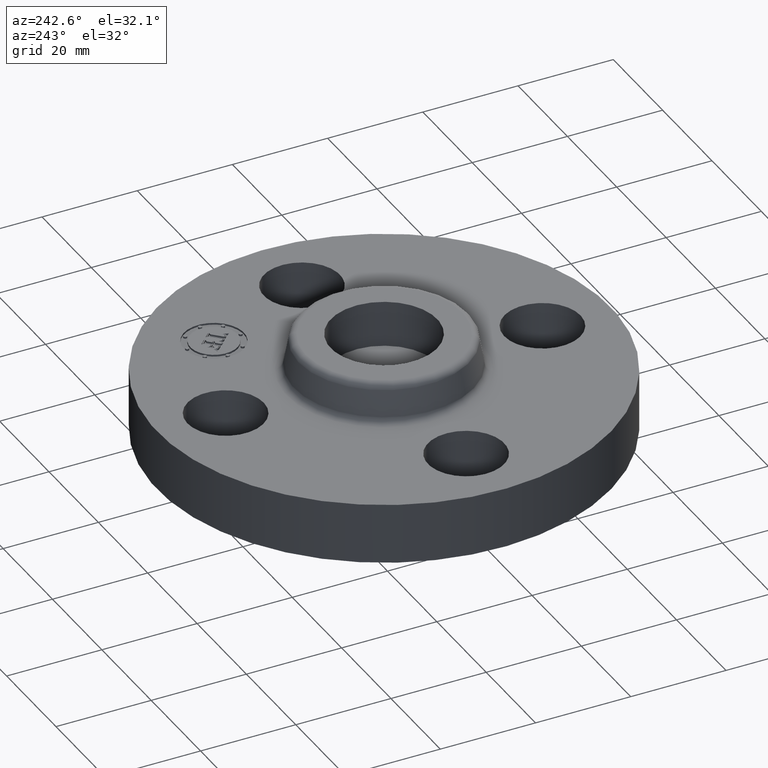
[diagram: clean part render]
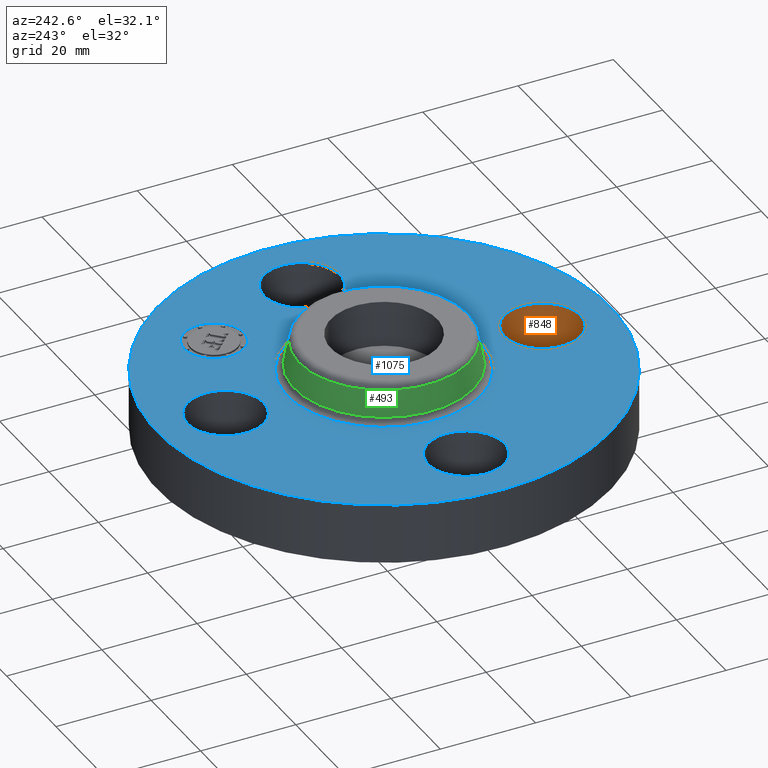
[diagram: same view with three faces highlighted in distinct colors, each labeled with its STEP entity id]
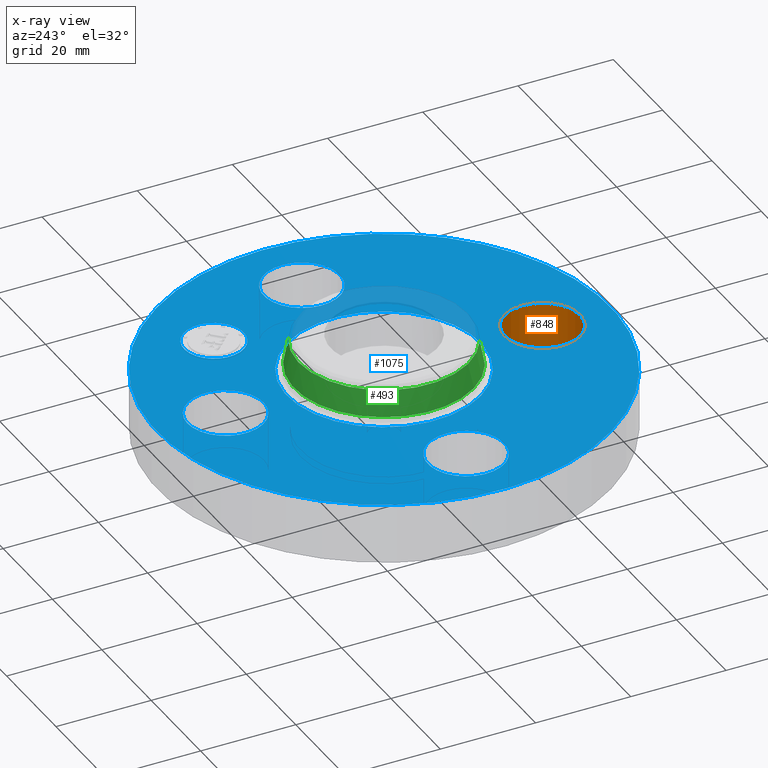
[diagram: x-ray of the same camera — body ghosted, the three highlighted faces saturated]
A machine part, auxiliary view with three faces highlighted in distinct colors.
The next image is the same camera in x-ray (body ghosted, the three faces saturated) — at least one of them is partly hidden behind the body in this view.
Their STEP definitions:

[orange] entity #848 — the highlighted cylindrical surface (partial cylindrical patch) has radius 8.001 mm, axis along (0, 0, -1).
#548=AXIS2_PLACEMENT_3D('Circle Axis2P3D',#546,#547,$) ;
#809=AXIS2_PLACEMENT_3D('Cylinder Axis2P3D',#806,#807,#808) ;
#546=CARTESIAN_POINT('Axis2P3D Location',(-1.28118338336E-011,-1.30999999998,0.)) ;
#550=CARTESIAN_POINT('Vertex',(0.151019044675,-1.03356149299,0.)) ;
#552=CARTESIAN_POINT('Vertex',(-0.151019044675,-1.58643850699,0.)) ;
#806=CARTESIAN_POINT('Axis2P3D Location',(-1.99526869207E-016,-1.31000000001,0.496062992128)) ;
#811=CARTESIAN_POINT('Line Origine',(0.151019044661,-1.03356149301,0.250000000001)) ;
#815=CARTESIAN_POINT('Vertex',(0.151019044659,-1.03356149301,0.499999999987)) ;
#818=CARTESIAN_POINT('Line Origine',(-0.151019044661,-1.58643850701,0.250000000001)) ;
#822=CARTESIAN_POINT('Vertex',(-0.151019044661,-1.58643850701,0.499999999987)) ;
#826=CARTESIAN_POINT('Control Point',(0.151019044659,-1.03356149301,0.499999999987)) ;
#827=CARTESIAN_POINT('Control Point',(0.194441903797,-1.05728350908,0.499999999988)) ;
#828=CARTESIAN_POINT('Control Point',(0.233206955973,-1.08953158359,0.499999999989)) ;
#829=CARTESIAN_POINT('Control Point',(0.265074533341,-1.12909312141,0.49999999999)) ;
#830=CARTESIAN_POINT('Control Point',(0.311580534084,-1.21857978084,0.499999999991)) ;
#831=CARTESIAN_POINT('Control Point',(0.320796932275,-1.31900750771,0.499999999992)) ;
#832=CARTESIAN_POINT('Control Point',(0.315356480668,-1.36951551943,0.499999999993)) ;
#833=CARTESIAN_POINT('Control Point',(0.284964565451,-1.46567685163,0.499999999995)) ;
#834=CARTESIAN_POINT('Control Point',(0.220468416417,-1.54320695598,0.499999999996)) ;
#835=CARTESIAN_POINT('Control Point',(0.180906878602,-1.57507453335,0.499999999997)) ;
#836=CARTESIAN_POINT('Control Point',(0.0914202191719,-1.62158053409,0.499999999998)) ;
#837=CARTESIAN_POINT('Control Point',(-0.0090075077032,-1.63079693228,0.5)) ;
#838=CARTESIAN_POINT('Control Point',(-0.0595155194239,-1.62535648068,0.500000000001)) ;
#839=CARTESIAN_POINT('Control Point',(-0.107596185523,-1.61016052307,0.500000000001)) ;
#840=CARTESIAN_POINT('Control Point',(-0.151019044661,-1.58643850701,0.500000000002)) ;
#547=DIRECTION('Axis2P3D Direction',(0.,0.,-0.0393700787402)) ;
#807=DIRECTION('Axis2P3D Direction',(0.,0.,-0.0393700787402)) ;
#808=DIRECTION('Axis2P3D XDirection',(0.0188750212047,0.0345504945627,0.)) ;
#812=DIRECTION('Vector Direction',(0.,0.,-0.0393700787402)) ;
#819=DIRECTION('Vector Direction',(0.,0.,-0.0393700787402)) ;
#813=VECTOR('Line Direction',#812,0.0393700787402) ;
#820=VECTOR('Line Direction',#819,0.0393700787402) ;
#843=ORIENTED_EDGE('',*,*,#817,.F.) ;
#844=ORIENTED_EDGE('',*,*,#554,.T.) ;
#845=ORIENTED_EDGE('',*,*,#824,.T.) ;
#846=ORIENTED_EDGE('',*,*,#841,.F.) ;
#848=ADVANCED_FACE('PartBody',(#847),#810,.F.) ;
#825=B_SPLINE_CURVE_WITH_KNOTS('',5,(#826,#827,#828,#829,#830,#831,#832,#833,#834,#835,#836,#837,#838,#839,#840),.UNSPECIFIED.,.F.,.U.,(6,3,3,3,6),(-12.5679414107,-6.28397070537,0.,6.28397070537,12.5679414107),.UNSPECIFIED.) ;
#549=CIRCLE('generated circle',#548,0.315000000013) ;
#810=CYLINDRICAL_SURFACE('generated cylinder',#809,0.315000000001) ;
#554=EDGE_CURVE('',#551,#553,#549,.T.) ;
#817=EDGE_CURVE('',#551,#816,#814,.F.) ;
#824=EDGE_CURVE('',#553,#823,#821,.F.) ;
#841=EDGE_CURVE('',#816,#823,#825,.T.) ;
#842=EDGE_LOOP('',(#843,#844,#845,#846)) ;
#847=FACE_OUTER_BOUND('',#842,.T.) ;
#814=LINE('Line',#811,#813) ;
#821=LINE('Line',#818,#820) ;
#551=VERTEX_POINT('',#550) ;
#553=VERTEX_POINT('',#552) ;
#816=VERTEX_POINT('',#815) ;
#823=VERTEX_POINT('',#822) ;

[blue] entity #1075 — the highlighted planar face has unit normal (0, 0, -1).
#615=AXIS2_PLACEMENT_3D('Circle Axis2P3D',#613,#614,$) ;
#653=AXIS2_PLACEMENT_3D('Circle Axis2P3D',#651,#652,$) ;
#684=AXIS2_PLACEMENT_3D('Circle Axis2P3D',#682,#683,$) ;
#715=AXIS2_PLACEMENT_3D('Circle Axis2P3D',#713,#714,$) ;
#753=AXIS2_PLACEMENT_3D('Circle Axis2P3D',#751,#752,$) ;
#863=AXIS2_PLACEMENT_3D('Circle Axis2P3D',#861,#862,$) ;
#937=AXIS2_PLACEMENT_3D('Circle Axis2P3D',#935,#936,$) ;
#1011=AXIS2_PLACEMENT_3D('Circle Axis2P3D',#1009,#1010,$) ;
#1031=AXIS2_PLACEMENT_3D('Plane Axis2P3D',#1028,#1029,#1030) ;
#1059=AXIS2_PLACEMENT_3D('Circle Axis2P3D',#1057,#1058,$) ;
#1068=AXIS2_PLACEMENT_3D('Circle Axis2P3D',#1066,#1067,$) ;
#613=CARTESIAN_POINT('Axis2P3D Location',(0.,0.,0.500000000002)) ;
#617=CARTESIAN_POINT('Vertex',(0.383706301512,0.702369673661,0.500000000002)) ;
#619=CARTESIAN_POINT('Vertex',(-0.383706301512,-0.702369673661,0.500000000002)) ;
#651=CARTESIAN_POINT('Axis2P3D Location',(0.,0.,0.500000000002)) ;
#679=CARTESIAN_POINT('Vertex',(-0.898922884888,-1.64546730355,0.499999999997)) ;
#682=CARTESIAN_POINT('Axis2P3D Location',(0.,0.,0.500000000002)) ;
#686=CARTESIAN_POINT('Vertex',(0.898922884888,1.64546730355,0.499999999997)) ;
#713=CARTESIAN_POINT('Axis2P3D Location',(0.,0.,0.499999999997)) ;
#741=CARTESIAN_POINT('Vertex',(1.58643850697,-0.151019044665,0.500000000002)) ;
#748=CARTESIAN_POINT('Vertex',(1.03356149301,0.151019044661,0.499999999987)) ;
#751=CARTESIAN_POINT('Axis2P3D Location',(1.31000000001,0.,0.499999999987)) ;
#776=CARTESIAN_POINT('Control Point',(1.03356149301,0.151019044661,0.500000000002)) ;
#777=CARTESIAN_POINT('Control Point',(1.05728350908,0.194441903798,0.500000000001)) ;
#778=CARTESIAN_POINT('Control Point',(1.08953158359,0.233206955974,0.500000000001)) ;
#779=CARTESIAN_POINT('Control Point',(1.12909312141,0.265074533342,0.5)) ;
#780=CARTESIAN_POINT('Control Point',(1.21857978084,0.311580534084,0.499999999998)) ;
#781=CARTESIAN_POINT('Control Point',(1.31900750771,0.320796932274,0.499999999997)) ;
#782=CARTESIAN_POINT('Control Point',(1.36951551943,0.315356480668,0.499999999996)) ;
#783=CARTESIAN_POINT('Control Point',(1.46567685163,0.28496456545,0.499999999995)) ;
#784=CARTESIAN_POINT('Control Point',(1.54320695598,0.220468416416,0.499999999993)) ;
#785=CARTESIAN_POINT('Control Point',(1.57507453335,0.180906878601,0.499999999992)) ;
#786=CARTESIAN_POINT('Control Point',(1.62158053409,0.0914202191715,0.499999999991)) ;
#787=CARTESIAN_POINT('Control Point',(1.63079693228,-0.00900750770346,0.49999999999)) ;
#788=CARTESIAN_POINT('Control Point',(1.62535648068,-0.059515519424,0.499999999989)) ;
#789=CARTESIAN_POINT('Control Point',(1.61016052307,-0.107596185523,0.499999999988)) ;
#790=CARTESIAN_POINT('Control Point',(1.58643850701,-0.151019044661,0.499999999987)) ;
#815=CARTESIAN_POINT('Vertex',(0.151019044659,-1.03356149301,0.499999999987)) ;
#822=CARTESIAN_POINT('Vertex',(-0.151019044661,-1.58643850701,0.499999999987)) ;
#826=CARTESIAN_POINT('Control Point',(0.151019044659,-1.03356149301,0.499999999987)) ;
#827=CARTESIAN_POINT('Control Point',(0.194441903797,-1.05728350908,0.499999999988)) ;
#828=CARTESIAN_POINT('Control Point',(0.233206955973,-1.08953158359,0.499999999989)) ;
#829=CARTESIAN_POINT('Control Point',(0.265074533341,-1.12909312141,0.49999999999)) ;
#830=CARTESIAN_POINT('Control Point',(0.311580534084,-1.21857978084,0.499999999991)) ;
#831=CARTESIAN_POINT('Control Point',(0.320796932275,-1.31900750771,0.499999999992)) ;
#832=CARTESIAN_POINT('Control Point',(0.315356480668,-1.36951551943,0.499999999993)) ;
#833=CARTESIAN_POINT('Control Point',(0.284964565451,-1.46567685163,0.499999999995)) ;
#834=CARTESIAN_POINT('Control Point',(0.220468416417,-1.54320695598,0.499999999996)) ;
#835=CARTESIAN_POINT('Control Point',(0.180906878602,-1.57507453335,0.499999999997)) ;
#836=CARTESIAN_POINT('Control Point',(0.0914202191719,-1.62158053409,0.499999999998)) ;
#837=CARTESIAN_POINT('Control Point',(-0.0090075077032,-1.63079693228,0.5)) ;
#838=CARTESIAN_POINT('Control Point',(-0.0595155194239,-1.62535648068,0.500000000001)) ;
#839=CARTESIAN_POINT('Control Point',(-0.107596185523,-1.61016052307,0.500000000001)) ;
#840=CARTESIAN_POINT('Control Point',(-0.151019044661,-1.58643850701,0.500000000002)) ;
#861=CARTESIAN_POINT('Axis2P3D Location',(-1.99526869207E-016,-1.31000000001,0.499999999987)) ;
#889=CARTESIAN_POINT('Vertex',(-1.03356149301,-0.151019044659,0.499999999987)) ;
#896=CARTESIAN_POINT('Vertex',(-1.58643850701,0.151019044661,0.499999999987)) ;
#900=CARTESIAN_POINT('Control Point',(-1.03356149301,-0.151019044659,0.499999999987)) ;
#901=CARTESIAN_POINT('Control Point',(-1.05728350908,-0.194441903797,0.499999999988)) ;
#902=CARTESIAN_POINT('Control Point',(-1.08953158359,-0.233206955973,0.499999999989)) ;
#903=CARTESIAN_POINT('Control Point',(-1.12909312141,-0.265074533341,0.49999999999)) ;
#904=CARTESIAN_POINT('Control Point',(-1.21857978084,-0.311580534084,0.499999999991)) ;
#905=CARTESIAN_POINT('Control Point',(-1.31900750771,-0.320796932275,0.499999999992)) ;
#906=CARTESIAN_POINT('Control Point',(-1.36951551943,-0.315356480668,0.499999999993)) ;
#907=CARTESIAN_POINT('Control Point',(-1.46567685163,-0.284964565451,0.499999999995)) ;
#908=CARTESIAN_POINT('Control Point',(-1.54320695598,-0.220468416417,0.499999999996)) ;
#909=CARTESIAN_POINT('Control Point',(-1.57507453335,-0.180906878602,0.499999999997)) ;
#910=CARTESIAN_POINT('Control Point',(-1.62158053409,-0.0914202191719,0.499999999998)) ;
#911=CARTESIAN_POINT('Control Point',(-1.63079693228,0.0090075077032,0.5)) ;
#912=CARTESIAN_POINT('Control Point',(-1.62535648068,0.0595155194239,0.500000000001)) ;
#913=CARTESIAN_POINT('Control Point',(-1.61016052307,0.107596185523,0.500000000001)) ;
#914=CARTESIAN_POINT('Control Point',(-1.58643850701,0.151019044661,0.500000000002)) ;
#935=CARTESIAN_POINT('Axis2P3D Location',(-1.31000000001,-1.60428730689E-016,0.499999999987)) ;
#963=CARTESIAN_POINT('Vertex',(-0.151019044659,1.03356149301,0.499999999987)) ;
#970=CARTESIAN_POINT('Vertex',(0.151019044661,1.58643850701,0.499999999987)) ;
#974=CARTESIAN_POINT('Control Point',(-0.151019044659,1.03356149301,0.499999999987)) ;
#975=CARTESIAN_POINT('Control Point',(-0.194441903797,1.05728350908,0.499999999988)) ;
#976=CARTESIAN_POINT('Control Point',(-0.233206955973,1.08953158359,0.499999999989)) ;
#977=CARTESIAN_POINT('Control Point',(-0.265074533341,1.12909312141,0.49999999999)) ;
#978=CARTESIAN_POINT('Control Point',(-0.311580534084,1.21857978084,0.499999999991)) ;
#979=CARTESIAN_POINT('Control Point',(-0.320796932275,1.31900750771,0.499999999992)) ;
#980=CARTESIAN_POINT('Control Point',(-0.315356480668,1.36951551943,0.499999999993)) ;
#981=CARTESIAN_POINT('Control Point',(-0.284964565451,1.46567685163,0.499999999995)) ;
#982=CARTESIAN_POINT('Control Point',(-0.220468416417,1.54320695598,0.499999999996)) ;
#983=CARTESIAN_POINT('Control Point',(-0.180906878602,1.57507453335,0.499999999997)) ;
#984=CARTESIAN_POINT('Control Point',(-0.0914202191719,1.62158053409,0.499999999998)) ;
#985=CARTESIAN_POINT('Control Point',(0.0090075077032,1.63079693228,0.5)) ;
#986=CARTESIAN_POINT('Control Point',(0.0595155194239,1.62535648068,0.500000000001)) ;
#987=CARTESIAN_POINT('Control Point',(0.107596185523,1.61016052307,0.500000000001)) ;
#988=CARTESIAN_POINT('Control Point',(0.151019044661,1.58643850701,0.500000000002)) ;
#1009=CARTESIAN_POINT('Axis2P3D Location',(-2.40643096033E-016,1.31000000001,0.499999999987)) ;
#1028=CARTESIAN_POINT('Axis2P3D Location',(0.,1.87500000001,0.500000000002)) ;
#1057=CARTESIAN_POINT('Axis2P3D Location',(0.926309883353,0.926309883363,0.500000000002)) ;
#1061=CARTESIAN_POINT('Vertex',(0.751300955001,1.10131881171,0.500000000002)) ;
#1063=CARTESIAN_POINT('Vertex',(1.1013188117,0.751300955011,0.500000000002)) ;
#1066=CARTESIAN_POINT('Axis2P3D Location',(0.926309883353,0.926309883363,0.500000000002)) ;
#614=DIRECTION('Axis2P3D Direction',(-0.,0.,-0.0393700787402)) ;
#652=DIRECTION('Axis2P3D Direction',(-0.,0.,-0.0393700787402)) ;
#683=DIRECTION('Axis2P3D Direction',(0.,0.,-0.0393700787402)) ;
#714=DIRECTION('Axis2P3D Direction',(0.,0.,-0.0393700787402)) ;
#752=DIRECTION('Axis2P3D Direction',(0.,-0.,-0.0393700787402)) ;
#862=DIRECTION('Axis2P3D Direction',(0.,0.,-0.0393700787402)) ;
#936=DIRECTION('Axis2P3D Direction',(0.,-0.,-0.0393700787402)) ;
#1010=DIRECTION('Axis2P3D Direction',(-0.,0.,-0.0393700787402)) ;
#1029=DIRECTION('Axis2P3D Direction',(0.,0.,-0.0393700787402)) ;
#1030=DIRECTION('Axis2P3D XDirection',(0.0393700787402,0.,0.)) ;
#1058=DIRECTION('Axis2P3D Direction',(0.,0.,-0.0393700787402)) ;
#1067=DIRECTION('Axis2P3D Direction',(0.,0.,-0.0393700787402)) ;
#1034=ORIENTED_EDGE('',*,*,#717,.F.) ;
#1035=ORIENTED_EDGE('',*,*,#688,.F.) ;
#1038=ORIENTED_EDGE('',*,*,#791,.T.) ;
#1039=ORIENTED_EDGE('',*,*,#755,.T.) ;
#1042=ORIENTED_EDGE('',*,*,#655,.T.) ;
#1043=ORIENTED_EDGE('',*,*,#621,.T.) ;
#1046=ORIENTED_EDGE('',*,*,#865,.T.) ;
#1047=ORIENTED_EDGE('',*,*,#841,.T.) ;
#1050=ORIENTED_EDGE('',*,*,#939,.T.) ;
#1051=ORIENTED_EDGE('',*,*,#915,.T.) ;
#1054=ORIENTED_EDGE('',*,*,#1013,.T.) ;
#1055=ORIENTED_EDGE('',*,*,#989,.T.) ;
#1072=ORIENTED_EDGE('',*,*,#1065,.T.) ;
#1073=ORIENTED_EDGE('',*,*,#1070,.T.) ;
#1040=FACE_BOUND('',#1037,.T.) ;
#1044=FACE_BOUND('',#1041,.T.) ;
#1048=FACE_BOUND('',#1045,.T.) ;
#1052=FACE_BOUND('',#1049,.T.) ;
#1056=FACE_BOUND('',#1053,.T.) ;
#1074=FACE_BOUND('',#1071,.T.) ;
#1075=ADVANCED_FACE('PartBody',(#1036,#1040,#1044,#1048,#1052,#1056,#1074),#1032,.F.) ;
#775=B_SPLINE_CURVE_WITH_KNOTS('',5,(#776,#777,#778,#779,#780,#781,#782,#783,#784,#785,#786,#787,#788,#789,#790),.UNSPECIFIED.,.F.,.U.,(6,3,3,3,6),(-12.5679414107,-6.28397070536,8.881784197E-016,6.28397070536,12.5679414107),.UNSPECIFIED.) ;
#825=B_SPLINE_CURVE_WITH_KNOTS('',5,(#826,#827,#828,#829,#830,#831,#832,#833,#834,#835,#836,#837,#838,#839,#840),.UNSPECIFIED.,.F.,.U.,(6,3,3,3,6),(-12.5679414107,-6.28397070537,0.,6.28397070537,12.5679414107),.UNSPECIFIED.) ;
#899=B_SPLINE_CURVE_WITH_KNOTS('',5,(#900,#901,#902,#903,#904,#905,#906,#907,#908,#909,#910,#911,#912,#913,#914),.UNSPECIFIED.,.F.,.U.,(6,3,3,3,6),(-12.5679414107,-6.28397070537,0.,6.28397070537,12.5679414107),.UNSPECIFIED.) ;
#973=B_SPLINE_CURVE_WITH_KNOTS('',5,(#974,#975,#976,#977,#978,#979,#980,#981,#982,#983,#984,#985,#986,#987,#988),.UNSPECIFIED.,.F.,.U.,(6,3,3,3,6),(-12.5679414107,-6.28397070537,0.,6.28397070537,12.5679414107),.UNSPECIFIED.) ;
#616=CIRCLE('generated circle',#615,0.800345977874) ;
#654=CIRCLE('generated circle',#653,0.800345977874) ;
#685=CIRCLE('generated circle',#684,1.87500000001) ;
#716=CIRCLE('generated circle',#715,1.87500000001) ;
#754=CIRCLE('generated circle',#753,0.315000000001) ;
#864=CIRCLE('generated circle',#863,0.315000000001) ;
#938=CIRCLE('generated circle',#937,0.315000000001) ;
#1012=CIRCLE('generated circle',#1011,0.315000000001) ;
#1060=CIRCLE('generated circle',#1059,0.247500000012) ;
#1069=CIRCLE('generated circle',#1068,0.247500000012) ;
#621=EDGE_CURVE('',#618,#620,#616,.T.) ;
#655=EDGE_CURVE('',#620,#618,#654,.T.) ;
#688=EDGE_CURVE('',#680,#687,#685,.T.) ;
#717=EDGE_CURVE('',#687,#680,#716,.T.) ;
#755=EDGE_CURVE('',#742,#749,#754,.T.) ;
#791=EDGE_CURVE('',#749,#742,#775,.T.) ;
#841=EDGE_CURVE('',#816,#823,#825,.T.) ;
#865=EDGE_CURVE('',#823,#816,#864,.T.) ;
#915=EDGE_CURVE('',#890,#897,#899,.T.) ;
#939=EDGE_CURVE('',#897,#890,#938,.T.) ;
#989=EDGE_CURVE('',#964,#971,#973,.T.) ;
#1013=EDGE_CURVE('',#971,#964,#1012,.T.) ;
#1065=EDGE_CURVE('',#1062,#1064,#1060,.T.) ;
#1070=EDGE_CURVE('',#1064,#1062,#1069,.T.) ;
#1033=EDGE_LOOP('',(#1034,#1035)) ;
#1037=EDGE_LOOP('',(#1038,#1039)) ;
#1041=EDGE_LOOP('',(#1042,#1043)) ;
#1045=EDGE_LOOP('',(#1046,#1047)) ;
#1049=EDGE_LOOP('',(#1050,#1051)) ;
#1053=EDGE_LOOP('',(#1054,#1055)) ;
#1071=EDGE_LOOP('',(#1072,#1073)) ;
#1036=FACE_OUTER_BOUND('',#1033,.T.) ;
#1032=PLANE('',#1031) ;
#618=VERTEX_POINT('',#617) ;
#620=VERTEX_POINT('',#619) ;
#680=VERTEX_POINT('',#679) ;
#687=VERTEX_POINT('',#686) ;
#742=VERTEX_POINT('',#741) ;
#749=VERTEX_POINT('',#748) ;
#816=VERTEX_POINT('',#815) ;
#823=VERTEX_POINT('',#822) ;
#890=VERTEX_POINT('',#889) ;
#897=VERTEX_POINT('',#896) ;
#964=VERTEX_POINT('',#963) ;
#971=VERTEX_POINT('',#970) ;
#1062=VERTEX_POINT('',#1061) ;
#1064=VERTEX_POINT('',#1063) ;

[green] entity #493 — the highlighted conical surface has half-angle 10 deg.
#348=AXIS2_PLACEMENT_3D('Circle Axis2P3D',#346,#347,$) ;
#480=AXIS2_PLACEMENT_3D('Cone Axis2P3D',#477,#478,#479) ;
#484=AXIS2_PLACEMENT_3D('Circle Axis2P3D',#482,#483,$) ;
#312=CARTESIAN_POINT('Vertex',(0.337554471756,0.617889315958,0.760418890663)) ;
#314=CARTESIAN_POINT('Vertex',(-0.337554471756,-0.617889315958,0.760418890663)) ;
#346=CARTESIAN_POINT('Axis2P3D Location',(0.,0.,0.760418890663)) ;
#448=CARTESIAN_POINT('Vertex',(0.355377782268,0.65051466701,0.549581109342)) ;
#450=CARTESIAN_POINT('Vertex',(-0.355377782268,-0.65051466701,0.549581109342)) ;
#453=CARTESIAN_POINT('Line Origine',(0.346466127012,0.634201991484,0.655000000001)) ;
#458=CARTESIAN_POINT('Line Origine',(-0.346466127012,-0.634201991484,0.655000000001)) ;
#477=CARTESIAN_POINT('Axis2P3D Location',(0.,0.,0.760418890663)) ;
#482=CARTESIAN_POINT('Axis2P3D Location',(0.,0.,0.549581109342)) ;
#347=DIRECTION('Axis2P3D Direction',(-0.,0.,-0.0393700787402)) ;
#454=DIRECTION('Vector Direction',(0.00327761303565,0.00599963041827,-0.03877195878)) ;
#459=DIRECTION('Vector Direction',(-0.00327761303565,-0.00599963041827,-0.03877195878)) ;
#478=DIRECTION('Axis2P3D Direction',(0.,0.,-0.0393700787402)) ;
#479=DIRECTION('Axis2P3D XDirection',(-0.0188750212049,-0.0345504945626,0.)) ;
#483=DIRECTION('Axis2P3D Direction',(-0.,0.,-0.0393700787402)) ;
#455=VECTOR('Line Direction',#454,0.0393700787402) ;
#460=VECTOR('Line Direction',#459,0.0393700787402) ;
#488=ORIENTED_EDGE('',*,*,#486,.F.) ;
#489=ORIENTED_EDGE('',*,*,#462,.T.) ;
#490=ORIENTED_EDGE('',*,*,#350,.T.) ;
#491=ORIENTED_EDGE('',*,*,#457,.F.) ;
#493=ADVANCED_FACE('PartBody',(#492),#481,.T.) ;
#349=CIRCLE('generated circle',#348,0.704081123293) ;
#485=CIRCLE('generated circle',#484,0.741257512693) ;
#481=CONICAL_SURFACE('Cone',#480,0.704081123293,0.174532925199) ;
#350=EDGE_CURVE('',#315,#313,#349,.T.) ;
#457=EDGE_CURVE('',#449,#313,#456,.F.) ;
#462=EDGE_CURVE('',#451,#315,#461,.F.) ;
#486=EDGE_CURVE('',#451,#449,#485,.T.) ;
#487=EDGE_LOOP('',(#488,#489,#490,#491)) ;
#492=FACE_OUTER_BOUND('',#487,.T.) ;
#456=LINE('Line',#453,#455) ;
#461=LINE('Line',#458,#460) ;
#313=VERTEX_POINT('',#312) ;
#315=VERTEX_POINT('',#314) ;
#449=VERTEX_POINT('',#448) ;
#451=VERTEX_POINT('',#450) ;